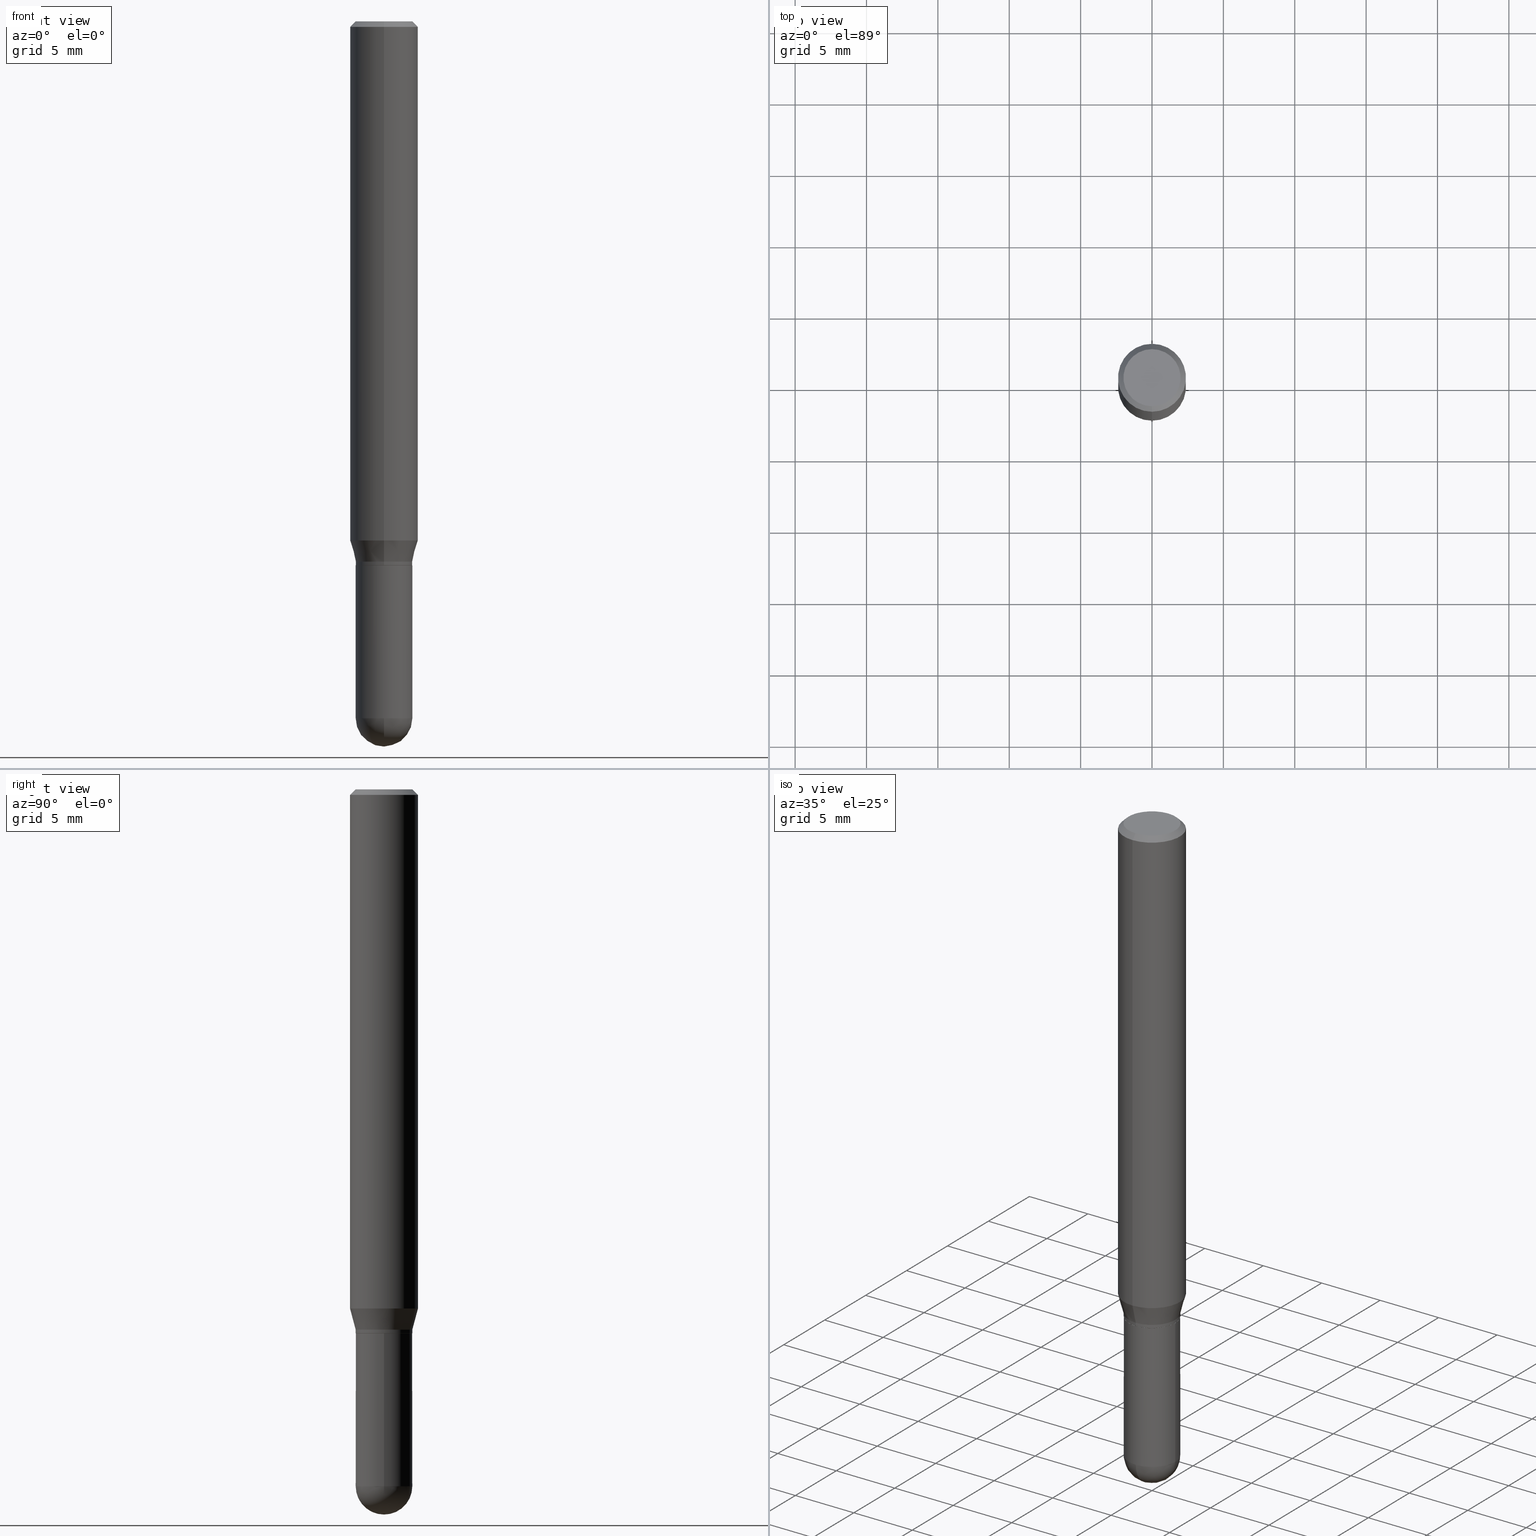
[diagram: canonical four-view strip — front | top / right | iso, engineering-drawing reading convention]
A machine part, canonical four-view strip (front | top / right | iso — engineering-drawing reading convention). The complete STEP part file that produces these views, byte-faithful:
ISO-10303-21;
HEADER;
FILE_DESCRIPTION (( 'STEP AP203' ),
    '1' );
FILE_NAME ('30320.STEP',
    '2024-03-08T15:21:15',
    ( '' ),
    ( '' ),
    'SwSTEP 2.0',
    'SolidWorks 2023',
    '' );
FILE_SCHEMA (( 'CONFIG_CONTROL_DESIGN' ));
ENDSEC;

DATA;
#1 = DIRECTION ( 'NONE',  ( -2.445468806185136597E-29, 3.491481338843145583E-15, 1.000000000000000000 ) ) ;
#2 = EDGE_LOOP ( 'NONE', ( #201, #63, #321, #399 ) ) ;
#3 = CARTESIAN_POINT ( 'NONE',  ( -6.431716872910806895E-16, -0.09375000000000005551, -0.01499999999999984852 ) ) ;
#4 = ORIENTED_EDGE ( 'NONE', *, *, #433, .T. ) ;
#5 = AXIS2_PLACEMENT_3D ( 'NONE', #29, #496, #99 ) ;
#6 = DIRECTION ( 'NONE',  ( -1.000000000000000000, 6.982962677686265922E-15, -4.883557194083112901E-29 ) ) ;
#7 = ORIENTED_EDGE ( 'NONE', *, *, #266, .T. ) ;
#8 = DIRECTION ( 'NONE',  ( -6.982962677686265922E-15, -1.000000000000000000, 3.483106191921935160E-15 ) ) ;
#9 = ORIENTED_EDGE ( 'NONE', *, *, #314, .T. ) ;
#10 = EDGE_CURVE ( 'NONE', #429, #160, #319, .T. ) ;
#11 = ORIENTED_EDGE ( 'NONE', *, *, #279, .T. ) ;
#12 = EDGE_CURVE ( 'NONE', #199, #117, #165, .T. ) ;
#13 = VECTOR ( 'NONE', #404, 39.37007874015748143 ) ;
#14 = AXIS2_PLACEMENT_3D ( 'NONE', #191, #271, #434 ) ;
#15 = CARTESIAN_POINT ( 'NONE',  ( 3.667433720281116648E-29, -5.234827194376057979E-15, -1.499500000000000277 ) ) ;
#16 = ORIENTED_EDGE ( 'NONE', *, *, #316, .T. ) ;
#17 = DIRECTION ( 'NONE',  ( 6.982962677686265922E-15, 1.000000000000000000, -3.483106191921935160E-15 ) ) ;
#18 = CARTESIAN_POINT ( 'NONE',  ( 6.546527510330878985E-16, 0.09374999999999995837, -0.01500000000000050078 ) ) ;
#19 = DIRECTION ( 'NONE',  ( -2.445771070544258513E-29, 3.491048479077063976E-15, 1.000000000000000000 ) ) ;
#20 = CARTESIAN_POINT ( 'NONE',  ( 3.667433720281116648E-29, -5.234827194376057979E-15, -1.499500000000000277 ) ) ;
#21 = DIRECTION ( 'NONE',  ( -2.445468806185136877E-29, 3.491481338843145188E-15, 1.000000000000000000 ) ) ;
#22 = AXIS2_PLACEMENT_3D ( 'NONE', #185, #379, #148 ) ;
#23 = DIRECTION ( 'NONE',  ( -2.445771070544258513E-29, 3.491048479077063976E-15, 1.000000000000000000 ) ) ;
#24 = CALENDAR_DATE ( 2024, 8, 3 ) ;
#25 = ORIENTED_EDGE ( 'NONE', *, *, #204, .F. ) ;
#26 = COORDINATED_UNIVERSAL_TIME_OFFSET ( 5, 0, .BEHIND. ) ;
#27 = CARTESIAN_POINT ( 'NONE',  ( 3.501349734392323234E-29, -4.997761978698656219E-15, -1.431593404861545960 ) ) ;
#28 = APPROVAL_DATE_TIME ( #64, #255 ) ;
#29 = CARTESIAN_POINT ( 'NONE',  ( 5.499083108677934443E-16, 0.07875000000000001443, -3.625853067319560965E-16 ) ) ;
#30 = AXIS2_PLACEMENT_3D ( 'NONE', #342, #466, #377 ) ;
#31 = CIRCLE ( 'NONE', #174, 0.07809999999999964193 ) ;
#32 = DIRECTION ( 'NONE',  ( -6.982962677686265922E-15, -1.000000000000000000, 2.913971193241880372E-15 ) ) ;
#33 = PERSON ( 'UNSPECIFIED', 'UNSPECIFIED', 'UNSPECIFIED', ('UNSPECIFIED'), ('UNSPECIFIED'), ('UNSPECIFIED') ) ;
#34 = ADVANCED_FACE ( 'NONE', ( #86 ), #480, .T. ) ;
#35 = FACE_OUTER_BOUND ( 'NONE', #122, .T. ) ;
#36 = DIRECTION ( 'NONE',  ( -2.445771070544258513E-29, 3.491048479077063976E-15, 1.000000000000000000 ) ) ;
#37 = CONICAL_SURFACE ( 'NONE', #351, 0.09375000000000001388, 0.7853981633974480570 ) ;
#38 = LOCAL_TIME ( 10, 21, 15.00000000000000000, #215 ) ;
#39 = DIRECTION ( 'NONE',  ( 1.000000000000000000, -6.982962677686266711E-15, 4.876176775795935232E-29 ) ) ;
#40 = VERTEX_POINT ( 'NONE', #488 ) ;
#41 = DIRECTION ( 'NONE',  ( -2.445468806185136597E-29, 3.491481338843145583E-15, 1.000000000000000000 ) ) ;
#42 = ORIENTED_EDGE ( 'NONE', *, *, #364, .T. ) ;
#43 = EDGE_CURVE ( 'NONE', #192, #343, #336, .T. ) ;
#44 = ORIENTED_EDGE ( 'NONE', *, *, #110, .T. ) ;
#45 = CARTESIAN_POINT ( 'NONE',  ( 4.288182108997796267E-45, -6.120871985901321353E-31, -1.753304780092744197E-16 ) ) ;
#46 = EDGE_LOOP ( 'NONE', ( #85, #435, #427, #88 ) ) ;
#47 = DIRECTION ( 'NONE',  ( -4.937700262164631661E-15, -0.7071067811865571207, 0.7071067811865379138 ) ) ;
#48 = ORIENTED_EDGE ( 'NONE', *, *, #291, .T. ) ;
#49 = ORIENTED_EDGE ( 'NONE', *, *, #505, .T. ) ;
#50 = AXIS2_PLACEMENT_3D ( 'NONE', #169, #287, #409 ) ;
#51 = MECHANICAL_CONTEXT ( 'NONE', #507, 'mechanical' ) ;
#52 = ORIENTED_EDGE ( 'NONE', *, *, #314, .F. ) ;
#53 = APPROVAL ( #365, 'UNSPECIFIED' ) ;
#54 = APPLICATION_PROTOCOL_DEFINITION ( 'international standard', 'config_control_design', 1994, #454 ) ;
#55 = ORIENTED_EDGE ( 'NONE', *, *, #10, .T. ) ;
#56 = DIRECTION ( 'NONE',  ( -2.445771070544258232E-29, 3.491048479077063581E-15, 1.000000000000000000 ) ) ;
#57 = DIRECTION ( 'NONE',  ( -2.445771070544258513E-29, 3.491048479077063976E-15, 1.000000000000000000 ) ) ;
#58 = VECTOR ( 'NONE', #21, 39.37007874015748143 ) ;
#59 = LOCAL_TIME ( 10, 21, 15.00000000000000000, #416 ) ;
#60 = DIRECTION ( 'NONE',  ( -6.982962677686264344E-15, -1.000000000000000000, 3.491048479077063976E-15 ) ) ;
#61 = PERSON_AND_ORGANIZATION ( #33, #286 ) ;
#62 = CARTESIAN_POINT ( 'NONE',  ( 0.07810000000000000275, -6.519119381820976762E-15, -1.921900000000000164 ) ) ;
#63 = ORIENTED_EDGE ( 'NONE', *, *, #257, .T. ) ;
#64 = DATE_AND_TIME ( #145, #214 ) ;
#65 = DIRECTION ( 'NONE',  ( -6.982962677686265922E-15, -1.000000000000000000, 3.483106191921935160E-15 ) ) ;
#66 = CARTESIAN_POINT ( 'NONE',  ( -0.07810000000000000275, -5.418816120065042244E-15, -1.921900000000000164 ) ) ;
#67 = EDGE_CURVE ( 'NONE', #164, #429, #382, .T. ) ;
#68 = PERSON_AND_ORGANIZATION ( #33, #286 ) ;
#69 = CARTESIAN_POINT ( 'NONE',  ( -6.546527510330523012E-16, -0.09375000000000500988, -1.431593404861545737 ) ) ;
#70 = CARTESIAN_POINT ( 'NONE',  ( 0.000000000000000000, 0.000000000000000000, 0.000000000000000000 ) ) ;
#71 = ADVANCED_FACE ( 'NONE', ( #406 ), #197, .T. ) ;
#72 = DIRECTION ( 'NONE',  ( -2.445771070544258513E-29, 3.491048479077063976E-15, 1.000000000000000000 ) ) ;
#73 = EDGE_LOOP ( 'NONE', ( #16, #11 ) ) ;
#74 = AXIS2_PLACEMENT_3D ( 'NONE', #387, #460, #414 ) ;
#75 = CC_DESIGN_SECURITY_CLASSIFICATION ( #501, ( #125 ) ) ;
#76 = CARTESIAN_POINT ( 'NONE',  ( 3.501349734392323234E-29, -4.997761978698656219E-15, -1.431593404861545960 ) ) ;
#77 = ORIENTED_EDGE ( 'NONE', *, *, #291, .F. ) ;
#78 = DIRECTION ( 'NONE',  ( 1.000000000000000000, -6.982962677686266711E-15, 0.000000000000000000 ) ) ;
#79 = EDGE_LOOP ( 'NONE', ( #52, #129, #44, #48 ) ) ;
#80 = EDGE_CURVE ( 'NONE', #120, #392, #123, .T. ) ;
#81 = LINE ( 'NONE', #113, #83 ) ;
#82 = VERTEX_POINT ( 'NONE', #241 ) ;
#83 = VECTOR ( 'NONE', #267, 39.37007874015748854 ) ;
#84 = CARTESIAN_POINT ( 'NONE',  ( 3.668203209277704895E-29, -5.237222008264718177E-15, -1.500000000000000222 ) ) ;
#85 = ORIENTED_EDGE ( 'NONE', *, *, #301, .F. ) ;
#86 = FACE_OUTER_BOUND ( 'NONE', #483, .T. ) ;
#87 = CARTESIAN_POINT ( 'NONE',  ( 3.668656605816388329E-29, -5.236572718615595766E-15, -1.500000000000000222 ) ) ;
#88 = ORIENTED_EDGE ( 'NONE', *, *, #364, .F. ) ;
#89 = EDGE_CURVE ( 'NONE', #195, #477, #290, .T. ) ;
#90 = CIRCLE ( 'NONE', #381, 0.09375000000000001388 ) ;
#91 = CARTESIAN_POINT ( 'NONE',  ( 5.453693851273441764E-16, 0.07809999999999325815, -1.921900000000000386 ) ) ;
#92 = VERTEX_POINT ( 'NONE', #333 ) ;
#93 = PERSON_AND_ORGANIZATION ( #33, #286 ) ;
#94 = CARTESIAN_POINT ( 'NONE',  ( 3.644198895110945173E-29, -5.201662233824825028E-15, -1.489999999999999991 ) ) ;
#95 = LINE ( 'NONE', #126, #58 ) ;
#96 = DIRECTION ( 'NONE',  ( 2.438088387897960049E-29, -3.491481338843145188E-15, -1.000000000000000000 ) ) ;
#97 = CLOSED_SHELL ( 'NONE', ( #181, #474, #369, #378, #34, #131, #274, #418, #247, #147, #71, #180 ) ) ;
#98 = CIRCLE ( 'NONE', #222, 0.07809999999999964193 ) ;
#99 = DIRECTION ( 'NONE',  ( 6.982962677686265922E-15, 1.000000000000000000, -3.491048479077063581E-15 ) ) ;
#100 = DIRECTION ( 'NONE',  ( 5.024295867788147587E-15, 0.7071067811865620056, 0.7071067811865330288 ) ) ;
#101 = ORIENTED_EDGE ( 'NONE', *, *, #110, .F. ) ;
#102 = COORDINATED_UNIVERSAL_TIME_OFFSET ( 5, 0, .BEHIND. ) ;
#103 = CARTESIAN_POINT ( 'NONE',  ( 3.668656605816387769E-29, -5.236572718615595766E-15, -1.499999999999999778 ) ) ;
#104 = ADVANCED_FACE ( 'NONE', ( #284 ), #451, .F. ) ;
#105 = DIRECTION ( 'NONE',  ( -2.445771070544258513E-29, 3.491048479077063581E-15, 1.000000000000000000 ) ) ;
#106 = AXIS2_PLACEMENT_3D ( 'NONE', #146, #461, #456 ) ;
#107 = AXIS2_PLACEMENT_3D ( 'NONE', #324, #448, #405 ) ;
#108 = FACE_OUTER_BOUND ( 'NONE', #415, .T. ) ;
#109 = ORIENTED_EDGE ( 'NONE', *, *, #136, .T. ) ;
#110 = EDGE_CURVE ( 'NONE', #392, #82, #127, .T. ) ;
#111 = CYLINDRICAL_SURFACE ( 'NONE', #422, 0.07810000000000000275 ) ;
#112 = EDGE_LOOP ( 'NONE', ( #109, #370, #492, #262 ) ) ;
#113 = CARTESIAN_POINT ( 'NONE',  ( 5.549338766286719885E-16, 0.07809999999999443776, -1.490000000000000213 ) ) ;
#114 = VECTOR ( 'NONE', #100, 39.37007874015748143 ) ;
#115 = VERTEX_POINT ( 'NONE', #281 ) ;
#116 = DIRECTION ( 'NONE',  ( -1.807323732225334478E-15, -0.2588190451025187966, 0.9659258262890687563 ) ) ;
#117 = VERTEX_POINT ( 'NONE', #443 ) ;
#118 = EDGE_CURVE ( 'NONE', #192, #199, #170, .T. ) ;
#119 = CYLINDRICAL_SURFACE ( 'NONE', #14, 0.09375000000000001388 ) ;
#120 = VERTEX_POINT ( 'NONE', #258 ) ;
#121 = CYLINDRICAL_SURFACE ( 'NONE', #463, 0.09375000000000001388 ) ;
#122 = EDGE_LOOP ( 'NONE', ( #156, #4, #312, #168 ) ) ;
#123 = CIRCLE ( 'NONE', #265, 0.07875000000000001443 ) ;
#124 = AXIS2_PLACEMENT_3D ( 'NONE', #238, #151, #8 ) ;
#125 = PRODUCT_DEFINITION_FORMATION_WITH_SPECIFIED_SOURCE ( 'ANY', '', #489, .NOT_KNOWN. ) ;
#126 = CARTESIAN_POINT ( 'NONE',  ( 0.07810000000000000275, -5.453693851272974364E-16, 3.808294061896625703E-30 ) ) ;
#127 = LINE ( 'NONE', #18, #155 ) ;
#128 = DIRECTION ( 'NONE',  ( -6.982962677686265922E-15, -1.000000000000000000, 3.520422672247761757E-15 ) ) ;
#129 = ORIENTED_EDGE ( 'NONE', *, *, #307, .F. ) ;
#130 = LINE ( 'NONE', #240, #361 ) ;
#131 = ADVANCED_FACE ( 'NONE', ( #225 ), #207, .T. ) ;
#132 = CARTESIAN_POINT ( 'NONE',  ( 5.513811629498742455E-16, 0.07759999999999475651, -1.500000000000000444 ) ) ;
#133 = CONICAL_SURFACE ( 'NONE', #259, 0.09375000000000001388, 0.7853981633974480570 ) ;
#134 = DATE_AND_TIME ( #490, #209 ) ;
#135 = VERTEX_POINT ( 'NONE', #144 ) ;
#136 = EDGE_CURVE ( 'NONE', #195, #92, #90, .T. ) ;
#137 = DIRECTION ( 'NONE',  ( 1.000000000000000000, -6.982962677686266711E-15, 0.000000000000000000 ) ) ;
#138 = CARTESIAN_POINT ( 'NONE',  ( 3.644198895110945173E-29, -5.201662233824825028E-15, -1.489999999999999991 ) ) ;
#139 = AXIS2_PLACEMENT_3D ( 'NONE', #325, #96, #375 ) ;
#140 = ADVANCED_FACE ( 'NONE', ( #419 ), #179, .T. ) ;
#141 = SECURITY_CLASSIFICATION_LEVEL ( 'unclassified' ) ;
#142 = AXIS2_PLACEMENT_3D ( 'NONE', #87, #329, #128 ) ;
#143 = DIRECTION ( 'NONE',  ( -6.982962677686265922E-15, -1.000000000000000000, 3.497884755011876582E-15 ) ) ;
#144 = CARTESIAN_POINT ( 'NONE',  ( 6.105338457019004099E-16, 0.07809999999999443776, -1.490000000000000213 ) ) ;
#145 = CALENDAR_DATE ( 2024, 8, 3 ) ;
#146 = CARTESIAN_POINT ( 'NONE',  ( 4.693267649888723399E-29, -6.719842476623982487E-15, -1.921900000000000164 ) ) ;
#147 = ADVANCED_FACE ( 'NONE', ( #108 ), #256, .F. ) ;
#148 = DIRECTION ( 'NONE',  ( -6.982962677686265922E-15, -1.000000000000000000, 3.520422672247761757E-15 ) ) ;
#149 = EDGE_CURVE ( 'NONE', #160, #358, #293, .T. ) ;
#150 = FACE_OUTER_BOUND ( 'NONE', #509, .T. ) ;
#151 = DIRECTION ( 'NONE',  ( -2.445771070544258513E-29, 3.491048479077063976E-15, 1.000000000000000000 ) ) ;
#152 = EDGE_LOOP ( 'NONE', ( #55, #206, #272, #239, #288 ) ) ;
#153 = DIRECTION ( 'NONE',  ( -6.982962677686265922E-15, -1.000000000000000000, 2.913971193241880372E-15 ) ) ;
#154 = AXIS2_PLACEMENT_3D ( 'NONE', #366, #210, #447 ) ;
#155 = VECTOR ( 'NONE', #362, 39.37007874015748143 ) ;
#156 = ORIENTED_EDGE ( 'NONE', *, *, #485, .T. ) ;
#157 = AXIS2_PLACEMENT_3D ( 'NONE', #352, #6, #159 ) ;
#158 = APPROVAL_PERSON_ORGANIZATION ( #61, #497, #504 ) ;
#159 = DIRECTION ( 'NONE',  ( 6.982962677686265922E-15, 1.000000000000000000, -3.497884755011862382E-15 ) ) ;
#160 = VERTEX_POINT ( 'NONE', #66 ) ;
#161 = FACE_OUTER_BOUND ( 'NONE', #79, .T. ) ;
#162 = ORIENTED_EDGE ( 'NONE', *, *, #301, .T. ) ;
#163 =( NAMED_UNIT ( * ) PLANE_ANGLE_UNIT ( ) SI_UNIT ( $, .RADIAN. ) );
#164 = VERTEX_POINT ( 'NONE', #62 ) ;
#165 = CIRCLE ( 'NONE', #371, 0.07809999999999991949 ) ;
#166 = CC_DESIGN_DATE_AND_TIME_ASSIGNMENT ( #376, #502, ( #380 ) ) ;
#167 = AXIS2_PLACEMENT_3D ( 'NONE', #103, #105, #298 ) ;
#168 = ORIENTED_EDGE ( 'NONE', *, *, #462, .F. ) ;
#169 = CARTESIAN_POINT ( 'NONE',  ( 4.699946498607214373E-29, -6.710277985122641264E-15, -1.921900000000000164 ) ) ;
#170 = LINE ( 'NONE', #132, #114 ) ;
#171 = APPROVAL_ROLE ( '' ) ;
#172 = EDGE_CURVE ( 'NONE', #92, #82, #300, .T. ) ;
#173 = CARTESIAN_POINT ( 'NONE',  ( 3.668656605816388329E-29, -5.236572718615595766E-15, -1.500000000000000222 ) ) ;
#174 = AXIS2_PLACEMENT_3D ( 'NONE', #138, #452, #143 ) ;
#175 = CC_DESIGN_PERSON_AND_ORGANIZATION_ASSIGNMENT ( #283, #444, ( #489 ) ) ;
#176 = CARTESIAN_POINT ( 'NONE',  ( 4.288182108997796267E-45, -6.120871985901321353E-31, -1.753304780092744197E-16 ) ) ;
#177 = ORIENTED_EDGE ( 'NONE', *, *, #80, .T. ) ;
#178 = APPROVAL_DATE_TIME ( #254, #497 ) ;
#179 = SPHERICAL_SURFACE ( 'NONE', #74, 0.07809999999999996112 ) ;
#180 = ADVANCED_FACE ( 'NONE', ( #417 ), #260, .T. ) ;
#181 = ADVANCED_FACE ( 'NONE', ( #35 ), #226, .T. ) ;
#182 = PERSON_AND_ORGANIZATION ( #33, #286 ) ;
#183 = AXIS2_PLACEMENT_3D ( 'NONE', #218, #503, #304 ) ;
#184 = CC_DESIGN_APPROVAL ( #53, ( #380 ) ) ;
#185 = CARTESIAN_POINT ( 'NONE',  ( 3.668656605816388329E-29, -5.236572718615595766E-15, -1.500000000000000222 ) ) ;
#186 = CARTESIAN_POINT ( 'NONE',  ( 5.531575197892741031E-16, 0.07759999999999475651, -1.500000000000000444 ) ) ;
#187 = EDGE_CURVE ( 'NONE', #211, #135, #31, .T. ) ;
#188 = CARTESIAN_POINT ( 'NONE',  ( 0.07810000000000000275, -5.782591393392015613E-15, -1.500000000000000222 ) ) ;
#189 = PLANE ( 'NONE',  #5 ) ;
#190 = EDGE_CURVE ( 'NONE', #477, #82, #311, .T. ) ;
#191 = CARTESIAN_POINT ( 'NONE',  ( 0.000000000000000000, 0.000000000000000000, 0.000000000000000000 ) ) ;
#192 = VERTEX_POINT ( 'NONE', #186 ) ;
#193 = CC_DESIGN_PERSON_AND_ORGANIZATION_ASSIGNMENT ( #340, #332, ( #125 ) ) ;
#194 = LINE ( 'NONE', #3, #229 ) ;
#195 = VERTEX_POINT ( 'NONE', #69 ) ;
#196 = FACE_OUTER_BOUND ( 'NONE', #152, .T. ) ;
#197 = CONICAL_SURFACE ( 'NONE', #227, 0.07760000000000000231, 0.7853981633974653764 ) ;
#198 = VECTOR ( 'NONE', #450, 39.37007874015748143 ) ;
#199 = VERTEX_POINT ( 'NONE', #426 ) ;
#200 = CARTESIAN_POINT ( 'NONE',  ( 3.668203209277704895E-29, -5.237222008264718177E-15, -1.500000000000000222 ) ) ;
#201 = ORIENTED_EDGE ( 'NONE', *, *, #425, .F. ) ;
#202 = DIRECTION ( 'NONE',  ( 6.982962677686266711E-15, 1.000000000000000000, 0.000000000000000000 ) ) ;
#203 = ORIENTED_EDGE ( 'NONE', *, *, #331, .T. ) ;
#204 = EDGE_CURVE ( 'NONE', #343, #192, #208, .T. ) ;
#205 = FACE_OUTER_BOUND ( 'NONE', #234, .T. ) ;
#206 = ORIENTED_EDGE ( 'NONE', *, *, #149, .T. ) ;
#207 = CONICAL_SURFACE ( 'NONE', #30, 0.07809999999999964193, 0.2617993877991509066 ) ;
#208 = CIRCLE ( 'NONE', #22, 0.07760000000000000231 ) ;
#209 = LOCAL_TIME ( 10, 21, 15.00000000000000000, #326 ) ;
#210 = DIRECTION ( 'NONE',  ( -2.445468806185136597E-29, 3.491481338843145583E-15, 1.000000000000000000 ) ) ;
#211 = VERTEX_POINT ( 'NONE', #506 ) ;
#212 = VERTEX_POINT ( 'NONE', #188 ) ;
#213 = CIRCLE ( 'NONE', #277, 0.07809999999999996112 ) ;
#214 = LOCAL_TIME ( 10, 21, 15.00000000000000000, #102 ) ;
#215 = COORDINATED_UNIVERSAL_TIME_OFFSET ( 5, 0, .BEHIND. ) ;
#216 = ORIENTED_EDGE ( 'NONE', *, *, #118, .T. ) ;
#217 = APPROVAL_STATUS ( 'not_yet_approved' ) ;
#218 = CARTESIAN_POINT ( 'NONE',  ( 0.000000000000000000, 0.000000000000000000, 0.000000000000000000 ) ) ;
#219 = DIRECTION ( 'NONE',  ( -2.445468806185136877E-29, 3.491481338843145188E-15, 1.000000000000000000 ) ) ;
#220 = PRODUCT_RELATED_PRODUCT_CATEGORY ( 'detail', '', ( #489 ) ) ;
#221 = AXIS2_PLACEMENT_3D ( 'NONE', #273, #398, #355 ) ;
#222 = AXIS2_PLACEMENT_3D ( 'NONE', #508, #36, #296 ) ;
#223 = DIRECTION ( 'NONE',  ( -6.982962677686265922E-15, -1.000000000000000000, 3.491048479077063581E-15 ) ) ;
#224 = PERSON_AND_ORGANIZATION ( #33, #286 ) ;
#225 = FACE_OUTER_BOUND ( 'NONE', #46, .T. ) ;
#226 = CYLINDRICAL_SURFACE ( 'NONE', #383, 0.07809999999999978071 ) ;
#227 = AXIS2_PLACEMENT_3D ( 'NONE', #411, #57, #244 ) ;
#228 = CARTESIAN_POINT ( 'NONE',  ( 3.668656605816431051E-31, -5.236572718615656977E-17, -0.01500000000000017465 ) ) ;
#229 = VECTOR ( 'NONE', #400, 39.37007874015748143 ) ;
#230 = ORIENTED_EDGE ( 'NONE', *, *, #299, .F. ) ;
#231 = DIRECTION ( 'NONE',  ( 1.000000000000000000, -6.982962677686266711E-15, 0.000000000000000000 ) ) ;
#232 = ORIENTED_EDGE ( 'NONE', *, *, #12, .F. ) ;
#233 = CARTESIAN_POINT ( 'NONE',  ( 6.022805309504406221E-16, 0.07875000000000001443, -4.502505457365932201E-16 ) ) ;
#234 = EDGE_LOOP ( 'NONE', ( #470, #216, #467, #318 ) ) ;
#235 = CARTESIAN_POINT ( 'NONE',  ( -0.07810000000000000275, -5.418816120065042244E-15, -1.500000000000000222 ) ) ;
#236 = AXIS2_PLACEMENT_3D ( 'NONE', #341, #385, #65 ) ;
#237 = ORIENTED_EDGE ( 'NONE', *, *, #425, .T. ) ;
#238 = CARTESIAN_POINT ( 'NONE',  ( 3.668656605816431051E-31, -5.236572718615656977E-17, -0.01500000000000017465 ) ) ;
#239 = ORIENTED_EDGE ( 'NONE', *, *, #464, .F. ) ;
#240 = CARTESIAN_POINT ( 'NONE',  ( -5.453693851272958587E-16, -0.07809999999999978071, 2.726508862159178968E-16 ) ) ;
#241 = CARTESIAN_POINT ( 'NONE',  ( 6.661338147751291272E-16, 0.09374999999999995837, -0.01500000000000050078 ) ) ;
#242 = MANIFOLD_SOLID_BREP ( 'Body-Move/Copy2[2]', #97 ) ;
#243 = EDGE_CURVE ( 'NONE', #135, #211, #98, .T. ) ;
#244 = DIRECTION ( 'NONE',  ( -6.982962677686265922E-15, -1.000000000000000000, 3.520422672247761757E-15 ) ) ;
#245 =( LENGTH_UNIT ( ) NAMED_UNIT ( * ) SI_UNIT ( $, .METRE. ) );
#246 = ORIENTED_EDGE ( 'NONE', *, *, #89, .T. ) ;
#247 = ADVANCED_FACE ( 'NONE', ( #253 ), #189, .F. ) ;
#248 = APPROVAL_DATE_TIME ( #134, #53 ) ;
#249 = DIRECTION ( 'NONE',  ( -2.445771070544258513E-29, 3.491048479077063976E-15, 1.000000000000000000 ) ) ;
#250 = DIRECTION ( 'NONE',  ( -6.982962677686265133E-15, -1.000000000000000000, 3.497884755011864354E-15 ) ) ;
#251 = EDGE_LOOP ( 'NONE', ( #395, #49, #7, #297, #449 ) ) ;
#252 = CIRCLE ( 'NONE', #328, 0.07810000000000000275 ) ;
#253 = FACE_OUTER_BOUND ( 'NONE', #354, .T. ) ;
#254 = DATE_AND_TIME ( #334, #269 ) ;
#255 = APPROVAL ( #337, 'UNSPECIFIED' ) ;
#256 = PLANE ( 'NONE',  #167 ) ;
#257 = EDGE_CURVE ( 'NONE', #115, #40, #302, .T. ) ;
#258 = CARTESIAN_POINT ( 'NONE',  ( -5.917179523077944868E-16, -0.07875000000000001443, 9.958958971804440537E-17 ) ) ;
#259 = AXIS2_PLACEMENT_3D ( 'NONE', #289, #403, #17 ) ;
#260 = CYLINDRICAL_SURFACE ( 'NONE', #183, 0.07809999999999978071 ) ;
#261 = CC_DESIGN_PERSON_AND_ORGANIZATION_ASSIGNMENT ( #292, #384, ( #501 ) ) ;
#262 = ORIENTED_EDGE ( 'NONE', *, *, #89, .F. ) ;
#263 = DIRECTION ( 'NONE',  ( -2.445468806185136597E-29, 3.491481338843145583E-15, 1.000000000000000000 ) ) ;
#264 = ORIENTED_EDGE ( 'NONE', *, *, #462, .T. ) ;
#265 = AXIS2_PLACEMENT_3D ( 'NONE', #176, #330, #60 ) ;
#266 = EDGE_CURVE ( 'NONE', #40, #164, #510, .T. ) ;
#267 = DIRECTION ( 'NONE',  ( 1.839019923739604654E-15, 0.2588190451025255689, 0.9659258262890669799 ) ) ;
#268 = CIRCLE ( 'NONE', #50, 0.07810000000000000275 ) ;
#269 = LOCAL_TIME ( 10, 21, 15.00000000000000000, #26 ) ;
#270 = ORIENTED_EDGE ( 'NONE', *, *, #433, .F. ) ;
#271 = DIRECTION ( 'NONE',  ( -2.445771070544258513E-29, 3.491048479077063976E-15, 1.000000000000000000 ) ) ;
#272 = ORIENTED_EDGE ( 'NONE', *, *, #316, .F. ) ;
#273 = CARTESIAN_POINT ( 'NONE',  ( 0.000000000000000000, 0.000000000000000000, 0.000000000000000000 ) ) ;
#274 = ADVANCED_FACE ( 'NONE', ( #150 ), #121, .T. ) ;
#275 = ORIENTED_EDGE ( 'NONE', *, *, #172, .F. ) ;
#276 = LINE ( 'NONE', #469, #412 ) ;
#277 = AXIS2_PLACEMENT_3D ( 'NONE', #368, #322, #202 ) ;
#278 = ORIENTED_EDGE ( 'NONE', *, *, #136, .F. ) ;
#279 = EDGE_CURVE ( 'NONE', #358, #212, #445, .T. ) ;
#280 = CARTESIAN_POINT ( 'NONE',  ( 4.699946498607214373E-29, -6.710277985122641264E-15, -1.921900000000000164 ) ) ;
#281 = CARTESIAN_POINT ( 'NONE',  ( 4.887598188011028267E-29, -6.987744923436962171E-15, -2.000000000000000000 ) ) ;
#282 = CC_DESIGN_PERSON_AND_ORGANIZATION_ASSIGNMENT ( #224, #374, ( #380 ) ) ;
#283 = PERSON_AND_ORGANIZATION ( #33, #286 ) ;
#284 = FACE_OUTER_BOUND ( 'NONE', #73, .T. ) ;
#285 = CIRCLE ( 'NONE', #372, 0.09375000000000001388 ) ;
#286 = ORGANIZATION ( 'UNSPECIFIED', 'UNSPECIFIED', '' ) ;
#287 = DIRECTION ( 'NONE',  ( -2.445468806185136597E-29, 3.491481338843145583E-15, 1.000000000000000000 ) ) ;
#288 = ORIENTED_EDGE ( 'NONE', *, *, #67, .T. ) ;
#289 = CARTESIAN_POINT ( 'NONE',  ( 3.668656605816431051E-31, -5.236572718615656977E-17, -0.01500000000000017465 ) ) ;
#290 = LINE ( 'NONE', #363, #13 ) ;
#291 = EDGE_CURVE ( 'NONE', #82, #477, #388, .T. ) ;
#292 = PERSON_AND_ORGANIZATION ( #33, #286 ) ;
#293 = LINE ( 'NONE', #335, #345 ) ;
#294 = CIRCLE ( 'NONE', #500, 0.07809999999999991949 ) ;
#295 = DATE_AND_TIME ( #459, #38 ) ;
#296 = DIRECTION ( 'NONE',  ( -6.982962677686265922E-15, -1.000000000000000000, 3.497884755011876582E-15 ) ) ;
#297 = ORIENTED_EDGE ( 'NONE', *, *, #464, .T. ) ;
#298 = DIRECTION ( 'NONE',  ( -6.982962677686265922E-15, -1.000000000000000000, 3.491048479077063581E-15 ) ) ;
#299 = EDGE_CURVE ( 'NONE', #211, #195, #276, .T. ) ;
#300 = LINE ( 'NONE', #424, #397 ) ;
#301 = EDGE_CURVE ( 'NONE', #135, #92, #81, .T. ) ;
#302 = CIRCLE ( 'NONE', #106, 0.07809999999999996112 ) ;
#303 = SHAPE_DEFINITION_REPRESENTATION ( #367, #495 ) ;
#304 = DIRECTION ( 'NONE',  ( -6.982962677686265922E-15, -1.000000000000000000, 3.491048479077063581E-15 ) ) ;
#305 = CARTESIAN_POINT ( 'NONE',  ( 0.000000000000000000, 0.000000000000000000, 0.000000000000000000 ) ) ;
#306 = ORIENTED_EDGE ( 'NONE', *, *, #266, .F. ) ;
#307 = EDGE_CURVE ( 'NONE', #392, #120, #430, .T. ) ;
#308 = CARTESIAN_POINT ( 'NONE',  ( 4.699946498607214373E-29, -6.710277985122641264E-15, -1.921900000000000164 ) ) ;
#309 = ORIENTED_EDGE ( 'NONE', *, *, #307, .T. ) ;
#310 = FACE_OUTER_BOUND ( 'NONE', #479, .T. ) ;
#311 = CIRCLE ( 'NONE', #236, 0.09375000000000001388 ) ;
#312 = ORIENTED_EDGE ( 'NONE', *, *, #187, .F. ) ;
#313 = CYLINDRICAL_SURFACE ( 'NONE', #221, 0.07810000000000000275 ) ;
#314 = EDGE_CURVE ( 'NONE', #120, #477, #194, .T. ) ;
#315 = ORIENTED_EDGE ( 'NONE', *, *, #43, .F. ) ;
#316 = EDGE_CURVE ( 'NONE', #212, #358, #252, .T. ) ;
#317 = CARTESIAN_POINT ( 'NONE',  ( -5.418779037884175500E-16, -0.07760000000000523424, -1.499999999999999778 ) ) ;
#318 = ORIENTED_EDGE ( 'NONE', *, *, #331, .F. ) ;
#319 = CIRCLE ( 'NONE', #154, 0.07810000000000000275 ) ;
#320 = AXIS2_PLACEMENT_3D ( 'NONE', #84, #347, #231 ) ;
#321 = ORIENTED_EDGE ( 'NONE', *, *, #505, .F. ) ;
#322 = DIRECTION ( 'NONE',  ( 1.000000000000000000, -6.982962677686265922E-15, 4.883557194083112340E-29 ) ) ;
#323 = DIRECTION ( 'NONE',  ( -6.982962677686265922E-15, -1.000000000000000000, 3.497884755011876582E-15 ) ) ;
#324 = CARTESIAN_POINT ( 'NONE',  ( 0.000000000000000000, 0.000000000000000000, 0.000000000000000000 ) ) ;
#325 = CARTESIAN_POINT ( 'NONE',  ( 5.453693851273340198E-16, 0.07809999999999475695, -1.500000000000000222 ) ) ;
#326 = COORDINATED_UNIVERSAL_TIME_OFFSET ( 5, 0, .BEHIND. ) ;
#327 = DIRECTION ( 'NONE',  ( -2.445468806185136597E-29, 3.491481338843145583E-15, 1.000000000000000000 ) ) ;
#328 = AXIS2_PLACEMENT_3D ( 'NONE', #200, #1, #78 ) ;
#329 = DIRECTION ( 'NONE',  ( -2.445771070544258513E-29, 3.491048479077063976E-15, 1.000000000000000000 ) ) ;
#330 = DIRECTION ( 'NONE',  ( -2.445771070544258513E-29, 3.491048479077063976E-15, 1.000000000000000000 ) ) ;
#331 = EDGE_CURVE ( 'NONE', #343, #117, #436, .T. ) ;
#332 = PERSON_AND_ORGANIZATION_ROLE ( 'creator' ) ;
#333 = CARTESIAN_POINT ( 'NONE',  ( 6.661338147751288313E-16, 0.09374999999999500400, -1.431593404861546182 ) ) ;
#334 = CALENDAR_DATE ( 2024, 8, 3 ) ;
#335 = CARTESIAN_POINT ( 'NONE',  ( -0.07810000000000000275, 5.549338766286382647E-16, -3.841688305489081275E-30 ) ) ;
#336 = CIRCLE ( 'NONE', #360, 0.07760000000000000231 ) ;
#337 = APPROVAL_STATUS ( 'not_yet_approved' ) ;
#338 = DIRECTION ( 'NONE',  ( -2.445771070544258513E-29, 3.491048479077063976E-15, 1.000000000000000000 ) ) ;
#339 = ADVANCED_FACE ( 'NONE', ( #431 ), #111, .T. ) ;
#340 = PERSON_AND_ORGANIZATION ( #33, #286 ) ;
#341 = CARTESIAN_POINT ( 'NONE',  ( 3.668656605816431051E-31, -5.236572718615656977E-17, -0.01500000000000017465 ) ) ;
#342 = CARTESIAN_POINT ( 'NONE',  ( 3.644198895110945173E-29, -5.201662233824825028E-15, -1.489999999999999991 ) ) ;
#343 = VERTEX_POINT ( 'NONE', #478 ) ;
#344 = AXIS2_PLACEMENT_3D ( 'NONE', #94, #249, #323 ) ;
#345 = VECTOR ( 'NONE', #219, 39.37007874015748143 ) ;
#346 = CARTESIAN_POINT ( 'NONE',  ( 0.000000000000000000, 0.000000000000000000, 0.000000000000000000 ) ) ;
#347 = DIRECTION ( 'NONE',  ( -2.445468806185136597E-29, 3.491481338843145583E-15, 1.000000000000000000 ) ) ;
#348 = EDGE_LOOP ( 'NONE', ( #458, #237, #437, #306 ) ) ;
#349 = DIRECTION ( 'NONE',  ( -6.982962677686264344E-15, -1.000000000000000000, 3.491048479077063976E-15 ) ) ;
#350 = ORIENTED_EDGE ( 'NONE', *, *, #118, .F. ) ;
#351 = AXIS2_PLACEMENT_3D ( 'NONE', #228, #391, #389 ) ;
#352 = CARTESIAN_POINT ( 'NONE',  ( 4.693267649888723399E-29, -6.719842476623982487E-15, -1.921900000000000164 ) ) ;
#353 =( GEOMETRIC_REPRESENTATION_CONTEXT ( 3 ) GLOBAL_UNCERTAINTY_ASSIGNED_CONTEXT ( ( #465 ) ) GLOBAL_UNIT_ASSIGNED_CONTEXT ( ( #442, #163, #486 ) ) REPRESENTATION_CONTEXT ( 'NONE', 'WORKASPACE' ) );
#354 = EDGE_LOOP ( 'NONE', ( #309, #177 ) ) ;
#355 = DIRECTION ( 'NONE',  ( 1.000000000000000000, -6.982962677686266711E-15, 4.876176775795935232E-29 ) ) ;
#356 = EDGE_LOOP ( 'NONE', ( #270, #390, #264, #432 ) ) ;
#357 = LENGTH_MEASURE_WITH_UNIT ( LENGTH_MEASURE( 0.02539999999999999897 ), #245 );
#358 = VERTEX_POINT ( 'NONE', #235 ) ;
#359 = LINE ( 'NONE', #482, #198 ) ;
#360 = AXIS2_PLACEMENT_3D ( 'NONE', #173, #410, #494 ) ;
#361 = VECTOR ( 'NONE', #56, 39.37007874015748143 ) ;
#362 = DIRECTION ( 'NONE',  ( 4.937700262164546464E-15, 0.7071067811865449082, -0.7071067811865501263 ) ) ;
#363 = CARTESIAN_POINT ( 'NONE',  ( -6.546527510330875041E-16, -0.09375000000000001388, 3.272857949134747847E-16 ) ) ;
#364 = EDGE_CURVE ( 'NONE', #92, #195, #285, .T. ) ;
#365 = APPROVAL_STATUS ( 'not_yet_approved' ) ;
#366 = CARTESIAN_POINT ( 'NONE',  ( 4.699946498607214373E-29, -6.710277985122641264E-15, -1.921900000000000164 ) ) ;
#367 = PRODUCT_DEFINITION_SHAPE ( 'NONE', 'NONE',  #380 ) ;
#368 = CARTESIAN_POINT ( 'NONE',  ( 4.693267649888723399E-29, -6.719842476623982487E-15, -1.921900000000000164 ) ) ;
#369 = ADVANCED_FACE ( 'NONE', ( #310 ), #37, .T. ) ;
#370 = ORIENTED_EDGE ( 'NONE', *, *, #172, .T. ) ;
#371 = AXIS2_PLACEMENT_3D ( 'NONE', #20, #23, #441 ) ;
#372 = AXIS2_PLACEMENT_3D ( 'NONE', #76, #72, #153 ) ;
#373 = CC_DESIGN_APPROVAL ( #497, ( #125 ) ) ;
#374 = PERSON_AND_ORGANIZATION_ROLE ( 'creator' ) ;
#375 = DIRECTION ( 'NONE',  ( -1.000000000000000000, 6.982962677686265922E-15, -4.876176775795935793E-29 ) ) ;
#376 = DATE_AND_TIME ( #24, #59 ) ;
#377 = DIRECTION ( 'NONE',  ( -6.982962677686265922E-15, -1.000000000000000000, 3.497884755011876582E-15 ) ) ;
#378 = ADVANCED_FACE ( 'NONE', ( #473 ), #119, .T. ) ;
#379 = DIRECTION ( 'NONE',  ( -2.445771070544258513E-29, 3.491048479077063976E-15, 1.000000000000000000 ) ) ;
#380 = PRODUCT_DEFINITION ( 'UNKNOWN', '', #125, #402 ) ;
#381 = AXIS2_PLACEMENT_3D ( 'NONE', #27, #338, #32 ) ;
#382 = CIRCLE ( 'NONE', #453, 0.07810000000000000275 ) ;
#383 = AXIS2_PLACEMENT_3D ( 'NONE', #70, #499, #223 ) ;
#384 = PERSON_AND_ORGANIZATION_ROLE ( 'classification_officer' ) ;
#385 = DIRECTION ( 'NONE',  ( -2.445771070544258513E-29, 3.491048479077063976E-15, 1.000000000000000000 ) ) ;
#386 = DIRECTION ( 'NONE',  ( -2.445771070544258232E-29, 3.491048479077063581E-15, 1.000000000000000000 ) ) ;
#387 = CARTESIAN_POINT ( 'NONE',  ( 4.693267649888723399E-29, -6.719842476623982487E-15, -1.921900000000000164 ) ) ;
#388 = CIRCLE ( 'NONE', #124, 0.09375000000000001388 ) ;
#389 = DIRECTION ( 'NONE',  ( 6.982962677686265922E-15, 1.000000000000000000, -3.483106191921935160E-15 ) ) ;
#390 = ORIENTED_EDGE ( 'NONE', *, *, #12, .T. ) ;
#391 = DIRECTION ( 'NONE',  ( 2.445771070544258513E-29, -3.491048479077063976E-15, -1.000000000000000000 ) ) ;
#392 = VERTEX_POINT ( 'NONE', #233 ) ;
#393 = CC_DESIGN_PERSON_AND_ORGANIZATION_ASSIGNMENT ( #68, #498, ( #125 ) ) ;
#394 = FACE_OUTER_BOUND ( 'NONE', #348, .T. ) ;
#395 = ORIENTED_EDGE ( 'NONE', *, *, #149, .F. ) ;
#396 = ADVANCED_FACE ( 'NONE', ( #394 ), #476, .T. ) ;
#397 = VECTOR ( 'NONE', #386, 39.37007874015748143 ) ;
#398 = DIRECTION ( 'NONE',  ( -2.445468806185136597E-29, 3.491481338843145583E-15, 1.000000000000000000 ) ) ;
#399 = ORIENTED_EDGE ( 'NONE', *, *, #10, .F. ) ;
#400 = DIRECTION ( 'NONE',  ( -4.851104656540962697E-15, -0.7071067811865497932, -0.7071067811865452413 ) ) ;
#401 = ORIENTED_EDGE ( 'NONE', *, *, #190, .T. ) ;
#402 = DESIGN_CONTEXT ( 'detailed design', #454, 'design' ) ;
#403 = DIRECTION ( 'NONE',  ( 2.445771070544258513E-29, -3.491048479077063976E-15, -1.000000000000000000 ) ) ;
#404 = DIRECTION ( 'NONE',  ( -2.445771070544258232E-29, 3.491048479077063581E-15, 1.000000000000000000 ) ) ;
#405 = DIRECTION ( 'NONE',  ( 1.000000000000000000, 0.000000000000000000, 0.000000000000000000 ) ) ;
#406 = FACE_OUTER_BOUND ( 'NONE', #487, .T. ) ;
#407 = ADVANCED_FACE ( 'NONE', ( #196 ), #313, .T. ) ;
#408 = ORIENTED_EDGE ( 'NONE', *, *, #80, .F. ) ;
#409 = DIRECTION ( 'NONE',  ( 1.000000000000000000, -6.982962677686266711E-15, 0.000000000000000000 ) ) ;
#410 = DIRECTION ( 'NONE',  ( -2.445771070544258513E-29, 3.491048479077063976E-15, 1.000000000000000000 ) ) ;
#411 = CARTESIAN_POINT ( 'NONE',  ( 3.668656605816388329E-29, -5.236572718615595766E-15, -1.500000000000000222 ) ) ;
#412 = VECTOR ( 'NONE', #116, 39.37007874015748854 ) ;
#413 = APPROVAL_PERSON_ORGANIZATION ( #182, #255, #455 ) ;
#414 = DIRECTION ( 'NONE',  ( 6.982962677686265922E-15, 1.000000000000000000, -3.497884755011862382E-15 ) ) ;
#415 = EDGE_LOOP ( 'NONE', ( #25, #315 ) ) ;
#416 = COORDINATED_UNIVERSAL_TIME_OFFSET ( 5, 0, .BEHIND. ) ;
#417 = FACE_OUTER_BOUND ( 'NONE', #356, .T. ) ;
#418 = ADVANCED_FACE ( 'NONE', ( #161 ), #133, .T. ) ;
#419 = FACE_OUTER_BOUND ( 'NONE', #2, .T. ) ;
#420 = CLOSED_SHELL ( 'NONE', ( #407, #140, #104, #396, #339 ) ) ;
#421 = MANIFOLD_SOLID_BREP ( 'Body-Move/Copy2[1]', #420 ) ;
#422 = AXIS2_PLACEMENT_3D ( 'NONE', #346, #263, #39 ) ;
#423 = DATE_TIME_ROLE ( 'classification_date' ) ;
#424 = CARTESIAN_POINT ( 'NONE',  ( 6.661338147750938256E-16, 0.09375000000000001388, -3.272857949134747847E-16 ) ) ;
#425 = EDGE_CURVE ( 'NONE', #115, #429, #213, .T. ) ;
#426 = CARTESIAN_POINT ( 'NONE',  ( 5.549338766286741579E-16, 0.07809999999999467368, -1.499500000000000499 ) ) ;
#427 = ORIENTED_EDGE ( 'NONE', *, *, #299, .T. ) ;
#428 = DIRECTION ( 'NONE',  ( -6.982962677686265922E-15, -1.000000000000000000, 3.491048479077063976E-15 ) ) ;
#429 = VERTEX_POINT ( 'NONE', #91 ) ;
#430 = CIRCLE ( 'NONE', #471, 0.07875000000000001443 ) ;
#431 = FACE_OUTER_BOUND ( 'NONE', #251, .T. ) ;
#432 = ORIENTED_EDGE ( 'NONE', *, *, #243, .F. ) ;
#433 = EDGE_CURVE ( 'NONE', #199, #135, #359, .T. ) ;
#434 = DIRECTION ( 'NONE',  ( -6.982962677686265922E-15, -1.000000000000000000, 3.491048479077063976E-15 ) ) ;
#435 = ORIENTED_EDGE ( 'NONE', *, *, #243, .T. ) ;
#436 = LINE ( 'NONE', #317, #491 ) ;
#437 = ORIENTED_EDGE ( 'NONE', *, *, #67, .F. ) ;
#438 = DIRECTION ( 'NONE',  ( -2.445771070544258513E-29, 3.491048479077063976E-15, 1.000000000000000000 ) ) ;
#439 = ORIENTED_EDGE ( 'NONE', *, *, #187, .T. ) ;
#440 = APPLICATION_PROTOCOL_DEFINITION ( 'international standard', 'config_control_design', 1994, #507 ) ;
#441 = DIRECTION ( 'NONE',  ( -6.982962677686265133E-15, -1.000000000000000000, 3.497884755011864354E-15 ) ) ;
#442 =( CONVERSION_BASED_UNIT ( 'INCH', #357 ) LENGTH_UNIT ( ) NAMED_UNIT ( #457 ) );
#443 = CARTESIAN_POINT ( 'NONE',  ( -5.453693851272600641E-16, -0.07810000000000515141, -1.499500000000000055 ) ) ;
#444 = PERSON_AND_ORGANIZATION_ROLE ( 'design_owner' ) ;
#445 = CIRCLE ( 'NONE', #320, 0.07810000000000000275 ) ;
#446 = AXIS2_PLACEMENT_3D ( 'NONE', #308, #41, #512 ) ;
#447 = DIRECTION ( 'NONE',  ( 1.000000000000000000, -6.982962677686266711E-15, 0.000000000000000000 ) ) ;
#448 = DIRECTION ( 'NONE',  ( 0.000000000000000000, 0.000000000000000000, 1.000000000000000000 ) ) ;
#449 = ORIENTED_EDGE ( 'NONE', *, *, #279, .F. ) ;
#450 = DIRECTION ( 'NONE',  ( -2.445771070544258232E-29, 3.491048479077063581E-15, 1.000000000000000000 ) ) ;
#451 = PLANE ( 'NONE',  #139 ) ;
#452 = DIRECTION ( 'NONE',  ( -2.445771070544258513E-29, 3.491048479077063976E-15, 1.000000000000000000 ) ) ;
#453 = AXIS2_PLACEMENT_3D ( 'NONE', #280, #327, #137 ) ;
#454 = APPLICATION_CONTEXT ( 'configuration controlled 3d designs of mechanical parts and assemblies' ) ;
#455 = APPROVAL_ROLE ( '' ) ;
#456 = DIRECTION ( 'NONE',  ( -7.105427357601000281E-15, -1.000000000000000000, 0.000000000000000000 ) ) ;
#457 = DIMENSIONAL_EXPONENTS ( 1.000000000000000000, 0.000000000000000000, 0.000000000000000000, 0.000000000000000000, 0.000000000000000000, 0.000000000000000000, 0.000000000000000000 ) ;
#458 = ORIENTED_EDGE ( 'NONE', *, *, #257, .F. ) ;
#459 = CALENDAR_DATE ( 2024, 8, 3 ) ;
#460 = DIRECTION ( 'NONE',  ( -1.000000000000000000, 6.982962677686265922E-15, -4.883557194083112901E-29 ) ) ;
#461 = DIRECTION ( 'NONE',  ( -1.000000000000000000, 7.105427357601001070E-15, -4.926315508542082329E-29 ) ) ;
#462 = EDGE_CURVE ( 'NONE', #117, #211, #130, .T. ) ;
#463 = AXIS2_PLACEMENT_3D ( 'NONE', #305, #468, #428 ) ;
#464 = EDGE_CURVE ( 'NONE', #164, #212, #95, .T. ) ;
#465 = UNCERTAINTY_MEASURE_WITH_UNIT (LENGTH_MEASURE( 1.000000000000000082E-05 ), #442, 'distance_accuracy_value', 'NONE');
#466 = DIRECTION ( 'NONE',  ( -2.445771070544258513E-29, 3.491048479077063976E-15, 1.000000000000000000 ) ) ;
#467 = ORIENTED_EDGE ( 'NONE', *, *, #485, .F. ) ;
#468 = DIRECTION ( 'NONE',  ( -2.445771070544258513E-29, 3.491048479077063976E-15, 1.000000000000000000 ) ) ;
#469 = CARTESIAN_POINT ( 'NONE',  ( -5.453693851272583878E-16, -0.07810000000000484610, -1.489999999999999769 ) ) ;
#470 = ORIENTED_EDGE ( 'NONE', *, *, #204, .T. ) ;
#471 = AXIS2_PLACEMENT_3D ( 'NONE', #45, #438, #349 ) ;
#472 = APPROVAL_PERSON_ORGANIZATION ( #93, #53, #171 ) ;
#473 = FACE_OUTER_BOUND ( 'NONE', #112, .T. ) ;
#474 = ADVANCED_FACE ( 'NONE', ( #205 ), #481, .T. ) ;
#475 = ORIENTED_EDGE ( 'NONE', *, *, #43, .T. ) ;
#476 = SPHERICAL_SURFACE ( 'NONE', #157, 0.07809999999999996112 ) ;
#477 = VERTEX_POINT ( 'NONE', #493 ) ;
#478 = CARTESIAN_POINT ( 'NONE',  ( -5.418779037884175500E-16, -0.07760000000000523424, -1.499999999999999778 ) ) ;
#479 = EDGE_LOOP ( 'NONE', ( #408, #9, #401, #101 ) ) ;
#480 = CONICAL_SURFACE ( 'NONE', #344, 0.07809999999999964193, 0.2617993877991509066 ) ;
#481 = CONICAL_SURFACE ( 'NONE', #142, 0.07760000000000000231, 0.7853981633974653764 ) ;
#482 = CARTESIAN_POINT ( 'NONE',  ( 5.549338766286364898E-16, 0.07809999999999978071, -2.726508862159178968E-16 ) ) ;
#483 = EDGE_LOOP ( 'NONE', ( #439, #162, #278, #230 ) ) ;
#484 = CC_DESIGN_DATE_AND_TIME_ASSIGNMENT ( #295, #423, ( #501 ) ) ;
#485 = EDGE_CURVE ( 'NONE', #117, #199, #294, .T. ) ;
#486 =( NAMED_UNIT ( * ) SI_UNIT ( $, .STERADIAN. ) SOLID_ANGLE_UNIT ( ) );
#487 = EDGE_LOOP ( 'NONE', ( #350, #475, #203, #232 ) ) ;
#488 = CARTESIAN_POINT ( 'NONE',  ( -5.549338766285910317E-16, -0.07810000000000670572, -1.921899999999999720 ) ) ;
#489 = PRODUCT ( '30320', '30320', '', ( #51 ) ) ;
#490 = CALENDAR_DATE ( 2024, 8, 3 ) ;
#491 = VECTOR ( 'NONE', #47, 39.37007874015748143 ) ;
#492 = ORIENTED_EDGE ( 'NONE', *, *, #190, .F. ) ;
#493 = CARTESIAN_POINT ( 'NONE',  ( -6.546527510330871097E-16, -0.09375000000000005551, -0.01499999999999984852 ) ) ;
#494 = DIRECTION ( 'NONE',  ( -6.982962677686265922E-15, -1.000000000000000000, 3.520422672247761757E-15 ) ) ;
#495 = ADVANCED_BREP_SHAPE_REPRESENTATION ( '30320', ( #421, #242, #107 ), #353 ) ;
#496 = DIRECTION ( 'NONE',  ( 2.445771070544258513E-29, -3.491048479077063581E-15, -1.000000000000000000 ) ) ;
#497 = APPROVAL ( #217, 'UNSPECIFIED' ) ;
#498 = PERSON_AND_ORGANIZATION_ROLE ( 'design_supplier' ) ;
#499 = DIRECTION ( 'NONE',  ( -2.445771070544258513E-29, 3.491048479077063976E-15, 1.000000000000000000 ) ) ;
#500 = AXIS2_PLACEMENT_3D ( 'NONE', #15, #19, #250 ) ;
#501 = SECURITY_CLASSIFICATION ( '', '', #141 ) ;
#502 = DATE_TIME_ROLE ( 'creation_date' ) ;
#503 = DIRECTION ( 'NONE',  ( -2.445771070544258513E-29, 3.491048479077063976E-15, 1.000000000000000000 ) ) ;
#504 = APPROVAL_ROLE ( '' ) ;
#505 = EDGE_CURVE ( 'NONE', #160, #40, #268, .T. ) ;
#506 = CARTESIAN_POINT ( 'NONE',  ( -5.453693851272583878E-16, -0.07810000000000484610, -1.489999999999999769 ) ) ;
#507 = APPLICATION_CONTEXT ( 'configuration controlled 3d designs of mechanical parts and assemblies' ) ;
#508 = CARTESIAN_POINT ( 'NONE',  ( 3.644198895110945173E-29, -5.201662233824825028E-15, -1.489999999999999991 ) ) ;
#509 = EDGE_LOOP ( 'NONE', ( #275, #42, #246, #77 ) ) ;
#510 = CIRCLE ( 'NONE', #446, 0.07810000000000000275 ) ;
#511 = CC_DESIGN_APPROVAL ( #255, ( #501 ) ) ;
#512 = DIRECTION ( 'NONE',  ( 1.000000000000000000, -6.982962677686266711E-15, 0.000000000000000000 ) ) ;
ENDSEC;
END-ISO-10303-21;
